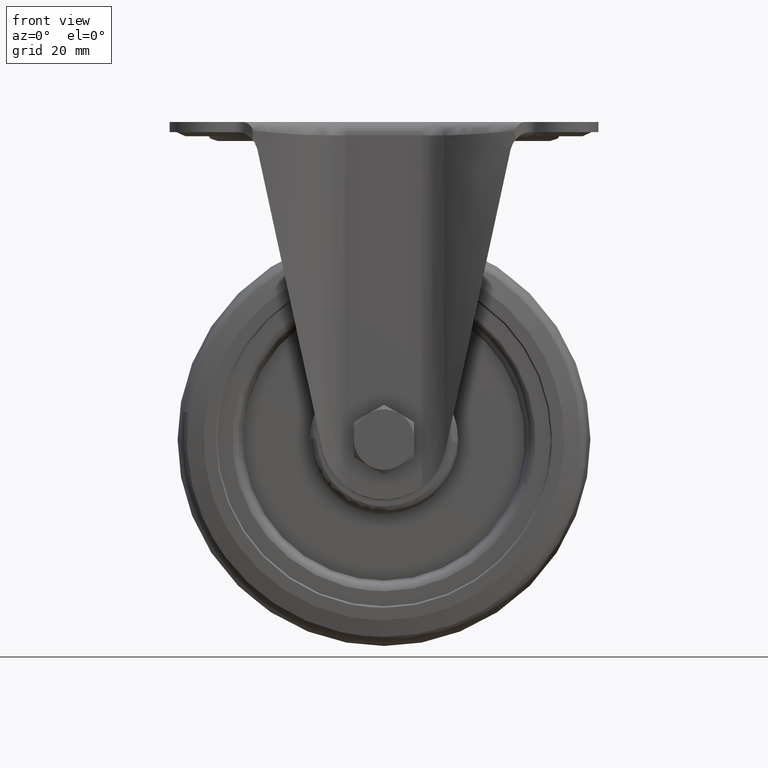
[diagram: clean part render]
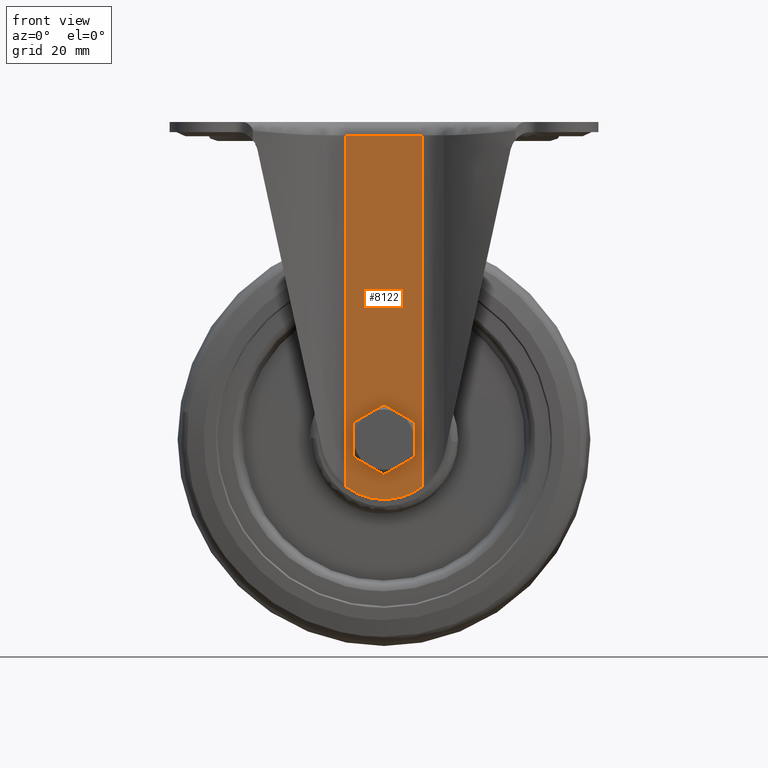
[diagram: same view with one face highlighted and labeled with its STEP entity id]
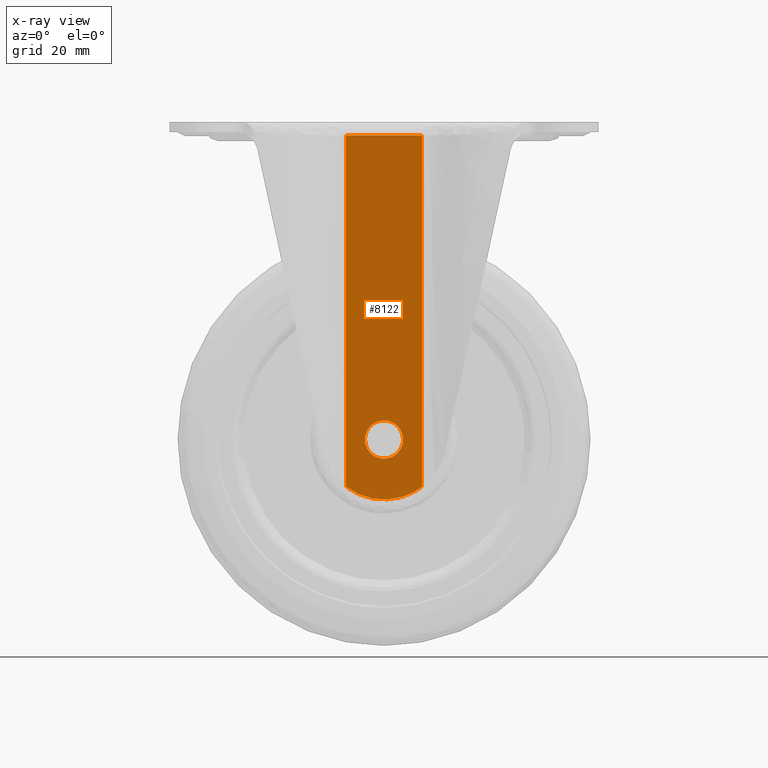
[diagram: x-ray of the same camera — body ghosted, the highlighted face saturated]
A machine part, front view. The second image highlights one B-rep face of the part: STEP entity #8122.
The next image is the same camera in x-ray: the body ghosted, the highlighted face saturated — about 0% of this face is hidden behind the body in this view.
In plain terms, the highlighted face is a freeform B-spline surface patch.
Its self-contained STEP definition (entity closure, byte-faithful):
#5781=CARTESIAN_POINT('',(0.052359213773399,-28.850000502181629,-105.999771538378200));
#5782=VERTEX_POINT('',#5781);
#5783=CARTESIAN_POINT('',(5.999999999999995,-28.850000750000000,-100.0));
#5784=VERTEX_POINT('',#5783);
#5785=CARTESIAN_POINT('',(0.052359213773399,-28.850000502181633,-105.999771538378180));
#5786=CARTESIAN_POINT('',(5.999999999999995,-28.850000749999996,-105.947867262793450));
#5787=CARTESIAN_POINT('',(5.999999999999995,-28.850000750000000,-100.0));
#5795=(BOUNDED_CURVE()B_SPLINE_CURVE(2,(#5785,#5786,#5787),.UNSPECIFIED.,.F.,.U.)B_SPLINE_CURVE_WITH_KNOTS((3,3),(0.751539894357979,1.0),.UNSPECIFIED.)CURVE()GEOMETRIC_REPRESENTATION_ITEM()RATIONAL_B_SPLINE_CURVE((0.996414028047196,0.708910879647112,1.0))REPRESENTATION_ITEM(''));
#5796=EDGE_CURVE('',#5782,#5784,#5795,.T.);
#5798=CARTESIAN_POINT('',(-0.052359213773399,-28.850000497818360,-94.000228461621802));
#5799=VERTEX_POINT('',#5798);
#5800=CARTESIAN_POINT('',(5.999999999999995,-28.850000750000000,-100.0));
#5801=CARTESIAN_POINT('',(5.999999999999996,-28.850000749999996,-94.000000000000014));
#5802=CARTESIAN_POINT('',(0.0,-28.850000500000000,-94.0));
#5803=CARTESIAN_POINT('',(-0.026180105315809,-28.850000498909168,-94.000000000000014));
#5804=CARTESIAN_POINT('',(-0.052359213773399,-28.850000497818368,-94.000228461621816));
#5812=(BOUNDED_CURVE()B_SPLINE_CURVE(2,(#5800,#5801,#5802,#5803,#5804),.UNSPECIFIED.,.F.,.U.)B_SPLINE_CURVE_WITH_KNOTS((3,2,3),(0.0,0.250000000000000,0.251539894357979),.UNSPECIFIED.)CURVE()GEOMETRIC_REPRESENTATION_ITEM()RATIONAL_B_SPLINE_CURVE((1.0,0.707106781186548,1.0,0.998195901539435,0.996414028047196))REPRESENTATION_ITEM(''));
#5813=EDGE_CURVE('',#5784,#5799,#5812,.T.);
#5880=CARTESIAN_POINT('',(-5.999999999999995,-28.850000250000001,-100.0));
#5881=VERTEX_POINT('',#5880);
#5882=CARTESIAN_POINT('',(-5.999999999999995,-28.850000250000001,-100.0));
#5883=CARTESIAN_POINT('',(-5.999999999999996,-28.850000250000008,-106.0));
#5884=CARTESIAN_POINT('',(0.0,-28.850000500000000,-106.0));
#5885=CARTESIAN_POINT('',(0.026180105315809,-28.850000501090843,-106.000000000000070));
#5886=CARTESIAN_POINT('',(0.052359213773399,-28.850000502181633,-105.999771538378180));
#5894=(BOUNDED_CURVE()B_SPLINE_CURVE(2,(#5882,#5883,#5884,#5885,#5886),.UNSPECIFIED.,.F.,.U.)B_SPLINE_CURVE_WITH_KNOTS((3,2,3),(0.500000000000000,0.750000000000000,0.751539894357979),.UNSPECIFIED.)CURVE()GEOMETRIC_REPRESENTATION_ITEM()RATIONAL_B_SPLINE_CURVE((1.0,0.707106781186548,1.0,0.998195901539435,0.996414028047196))REPRESENTATION_ITEM(''));
#5895=EDGE_CURVE('',#5881,#5782,#5894,.T.);
#5929=CARTESIAN_POINT('',(-0.052359213773399,-28.850000497818368,-94.000228461621816));
#5930=CARTESIAN_POINT('',(-5.999999999999995,-28.850000250000008,-94.052132737206534));
#5931=CARTESIAN_POINT('',(-5.999999999999995,-28.850000250000001,-100.0));
#5939=(BOUNDED_CURVE()B_SPLINE_CURVE(2,(#5929,#5930,#5931),.UNSPECIFIED.,.F.,.U.)B_SPLINE_CURVE_WITH_KNOTS((3,3),(0.251539894357979,0.500000000000000),.UNSPECIFIED.)CURVE()GEOMETRIC_REPRESENTATION_ITEM()RATIONAL_B_SPLINE_CURVE((0.996414028047196,0.708910879647112,1.0))REPRESENTATION_ITEM(''));
#5940=EDGE_CURVE('',#5799,#5881,#5939,.T.);
#7279=CARTESIAN_POINT('',(11.998857443558160,-28.850000999952350,-4.200000000000000));
#7280=VERTEX_POINT('',#7279);
#7332=CARTESIAN_POINT('',(-11.998855098554341,-28.850000000047650,-4.200000000000000));
#7333=VERTEX_POINT('',#7332);
#7347=CARTESIAN_POINT('',(11.998857443558160,-28.850000999952350,-4.200000000000000));
#7348=CARTESIAN_POINT('',(-11.998855098554341,-28.850000000047650,-4.200000000000000));
#7349=QUASI_UNIFORM_CURVE('',1,(#7347,#7348),.UNSPECIFIED.,.F.,.U.);
#7350=EDGE_CURVE('',#7280,#7333,#7349,.T.);
#8052=CARTESIAN_POINT('',(11.998857443558160,-28.850000999952350,-114.853966500259200));
#8053=VERTEX_POINT('',#8052);
#8054=CARTESIAN_POINT('',(11.998857443558160,-28.850000999952350,-114.853966500259200));
#8055=CARTESIAN_POINT('',(11.998857443558160,-28.850000999952350,-4.200000000000000));
#8056=QUASI_UNIFORM_CURVE('',1,(#8054,#8055),.UNSPECIFIED.,.F.,.U.);
#8057=EDGE_CURVE('',#8053,#7280,#8056,.T.);
#8087=CARTESIAN_POINT('',(-13.197540793520631,-28.849999950102450,-124.630567604019800));
#8088=CARTESIAN_POINT('',(13.197543782193261,-28.850001049897639,-124.630567604019800));
#8089=CARTESIAN_POINT('',(-13.197540793520631,-28.849999950102450,1.529329834475030));
#8090=CARTESIAN_POINT('',(13.197543782193261,-28.850001049897639,1.529329834475030));
#8091=B_SPLINE_SURFACE_WITH_KNOTS('',1,1,((#8087,#8089),(#8088,#8090)),.UNSPECIFIED.,.F.,.F.,.U.,(2,2),(2,2),(0.0,26.395084575713920),(0.0,126.159897438494800),.UNSPECIFIED.);
#8092=ORIENTED_EDGE('',*,*,#8057,.T.);
#8093=ORIENTED_EDGE('',*,*,#7350,.T.);
#8094=CARTESIAN_POINT('',(-11.998855098554341,-28.850000000047700,-114.853968285316200));
#8095=VERTEX_POINT('',#8094);
#8096=CARTESIAN_POINT('',(-11.998855098554341,-28.850000000047700,-114.853968285316200));
#8097=CARTESIAN_POINT('',(-11.998855098554341,-28.850000000047650,-4.200000000000000));
#8098=QUASI_UNIFORM_CURVE('',1,(#8096,#8097),.UNSPECIFIED.,.F.,.U.);
#8099=EDGE_CURVE('',#8095,#7333,#8098,.T.);
#8100=ORIENTED_EDGE('',*,*,#8099,.F.);
#8101=CARTESIAN_POINT('',(-11.998855098554319,-28.850000000047711,-114.853968285316200));
#8102=CARTESIAN_POINT('',(0.000001851909826,-28.850000500000075,-123.987701419497950));
#8103=CARTESIAN_POINT('',(11.998857443558149,-28.850000999952389,-114.853966500259200));
#8111=(BOUNDED_CURVE()B_SPLINE_CURVE(2,(#8101,#8102,#8103),.UNSPECIFIED.,.F.,.U.)CURVE()GEOMETRIC_REPRESENTATION_ITEM()QUASI_UNIFORM_CURVE()RATIONAL_B_SPLINE_CURVE((1.0,0.795695433958386,1.0))REPRESENTATION_ITEM(''));
#8112=EDGE_CURVE('',#8095,#8053,#8111,.T.);
#8113=ORIENTED_EDGE('',*,*,#8112,.T.);
#8114=EDGE_LOOP('',(#8092,#8093,#8100,#8113));
#8115=FACE_OUTER_BOUND('',#8114,.T.);
#8116=ORIENTED_EDGE('',*,*,#5813,.F.);
#8117=ORIENTED_EDGE('',*,*,#5796,.F.);
#8118=ORIENTED_EDGE('',*,*,#5895,.F.);
#8119=ORIENTED_EDGE('',*,*,#5940,.F.);
#8120=EDGE_LOOP('',(#8116,#8117,#8118,#8119));
#8121=FACE_BOUND('',#8120,.T.);
#8122=ADVANCED_FACE('',(#8115,#8121),#8091,.T.);